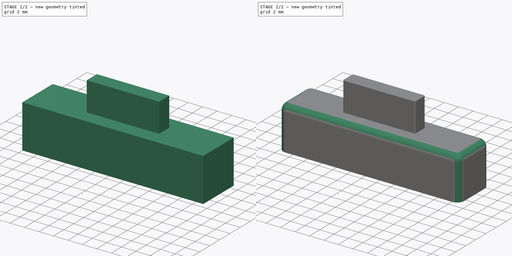
[diagram: build sequence overview — one tinted view per stage of 2, left to right]
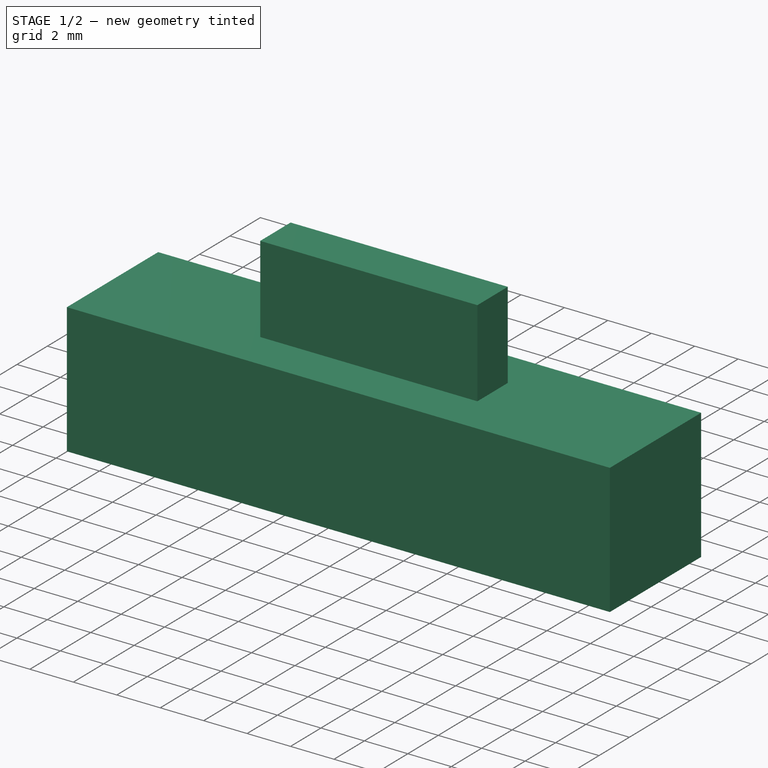
[diagram: stage 1 of 2 — iso view after this stage's code; geometry added in this stage tinted green]
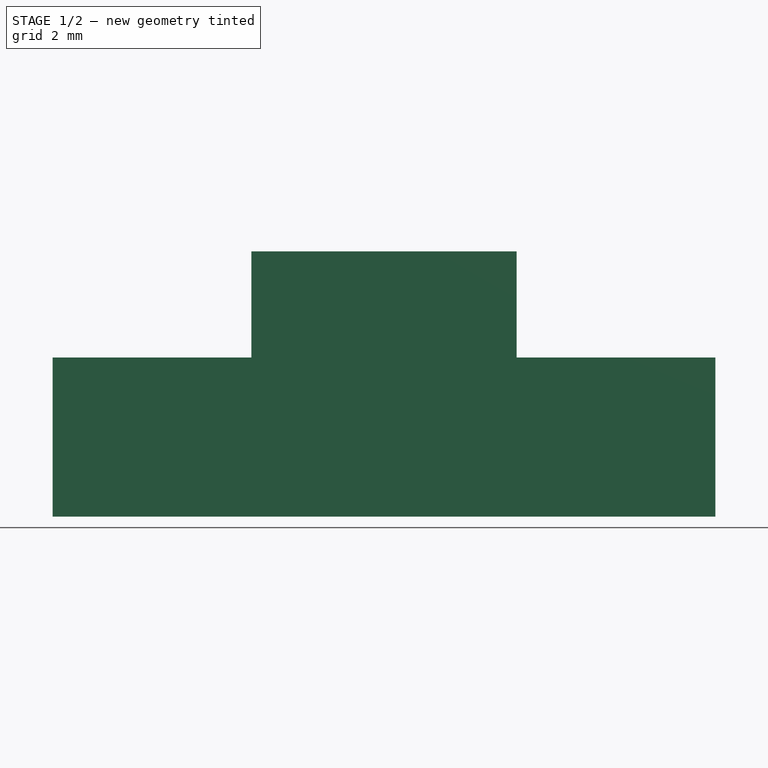
[diagram: stage 1 of 2 — front view after this stage's code; geometry added in this stage tinted green]
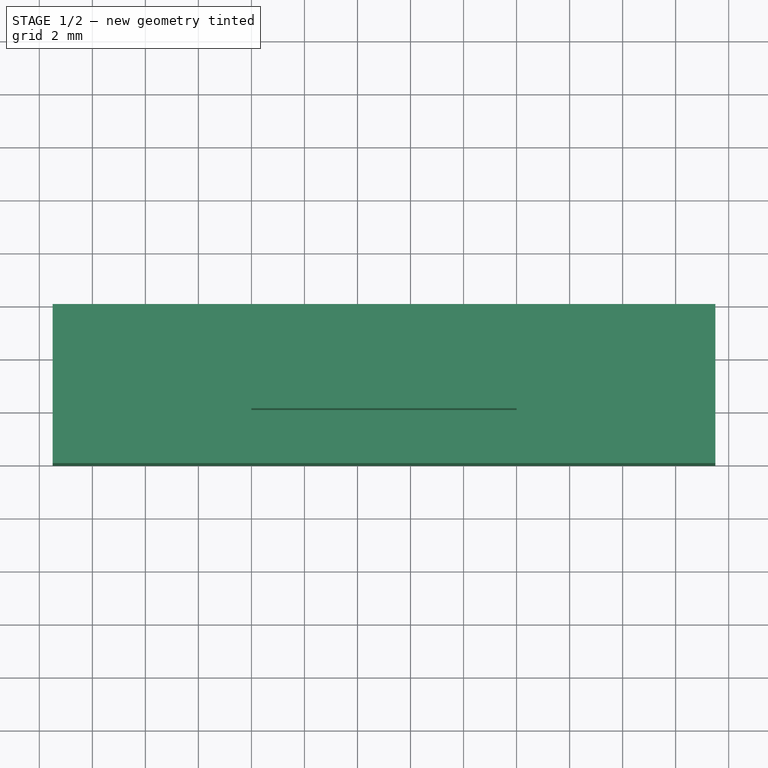
[diagram: stage 1 of 2 — top view after this stage's code; geometry added in this stage tinted green]
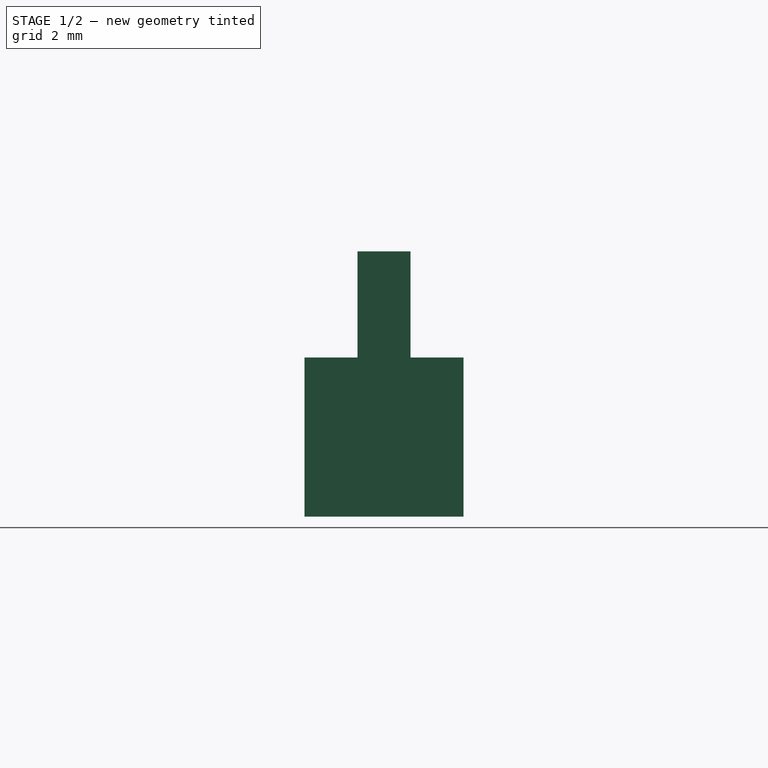
[diagram: stage 1 of 2 — right view after this stage's code; geometry added in this stage tinted green]
FCSTD DOCUMENT  (FreeCAD 0.21R33771 (Git))
Label: surfboardKey
License: All rights reserved
LicenseURL: http://en.wikipedia.org/wiki/All_rights_reserved
objects: Sketcher::SketchObject×2, PartDesign::Pad×2, PartDesign::Fillet×2, Spreadsheet::Sheet×1, PartDesign::Body×1
note: 11 computed .brp shape members not serialized (recipe doc carries the construction recipe); baked Part::Feature solids carry a one-line shape summary decoded from their .brp

FEATURE [Sketcher::SketchObject] Sketch
  FullyConstrained = true
  MapMode = 5
  Support = -> [XY_Plane]
  expr: Constraints[10] = Spreadsheet.keyWidth
  expr: Constraints[9] = Spreadsheet.keyThickness
  sketch-geometry (4):
    g0: LineSegment StartX=0 StartY=0 StartZ=0 EndX=10 EndY=0 EndZ=0
    g1: LineSegment StartX=10 StartY=0 StartZ=0 EndX=10 EndY=2 EndZ=0
    g2: LineSegment StartX=10 StartY=2 StartZ=0 EndX=0 EndY=2 EndZ=0
    g3: LineSegment StartX=0 StartY=2 StartZ=0 EndX=0 EndY=0 EndZ=0
  constraints (11):
    c: Coincident(g0,g1)
    c: Coincident(g1,g2)
    c: Coincident(g2,g3)
    c: Coincident(g3,g0)
    c: Horizontal(g0)
    c: Horizontal(g2)
    c: Vertical(g1)
    c: Vertical(g3)
    c: Coincident(g0,g-1)
    c: DistanceY(g3,g3) = 2
    c: DistanceX(g2,g2) = 10
FEATURE [Spreadsheet::Sheet] Spreadsheet
  cells = A2='baseWidth; B2(baseWidth)=25; A3='baseHeight; B3(baseHeight)=6; A4='baseZ; B4(baseZ)=6; A5='keyZ; B5(keyZ)=4; A6='keyWidth; B6(keyWidth)=10; A7='keyThickness; B7(keyThickness)=2
FEATURE [PartDesign::Pad] Pad
  Direction = (0,0,1)
  Length = 4
  Length2 = 10
  Profile = -> Sketch
  ReferenceAxis = -> Sketch [N_Axis]
  Type = 0
  expr: Length = Spreadsheet.keyZ
FEATURE [Sketcher::SketchObject] Sketch001
  FullyConstrained = true
  MapMode = 5
  Support = -> [XY_Plane]
  expr: Constraints[10] = (Spreadsheet.baseHeight - Spreadsheet.keyThickness) / 2
  expr: Constraints[11] = Spreadsheet.baseHeight
  expr: Constraints[8] = (Spreadsheet.baseWidth - Spreadsheet.keyWidth) / 2
  expr: Constraints[9] = Spreadsheet.baseWidth
  sketch-geometry (4):
    g0: LineSegment StartX=-7.5 StartY=4 StartZ=0 EndX=17.5 EndY=4 EndZ=0
    g1: LineSegment StartX=17.5 StartY=4 StartZ=0 EndX=17.5 EndY=-2 EndZ=0
    g2: LineSegment StartX=17.5 StartY=-2 StartZ=0 EndX=-7.5 EndY=-2 EndZ=0
    g3: LineSegment StartX=-7.5 StartY=-2 StartZ=0 EndX=-7.5 EndY=4 EndZ=0
  constraints (12):
    c: Coincident(g0,g1)
    c: Coincident(g1,g2)
    c: Coincident(g2,g3)
    c: Coincident(g3,g0)
    c: Horizontal(g0)
    c: Horizontal(g2)
    c: Vertical(g1)
    c: Vertical(g3)
    c: DistanceX(g2,g-1) = 7.5
    c: DistanceX(g2,g2) = 25
    c: DistanceY(g2,g-1) = 2
    c: DistanceY(g3,g3) = 6
FEATURE [PartDesign::Pad] Pad001
  BaseFeature = -> Pad
  Direction = (0,0,1)
  Length = 6
  Length2 = 10
  Profile = -> Sketch001
  ReferenceAxis = -> Sketch001 [N_Axis]
  Reversed = true
  Type = 0
  expr: Length = Spreadsheet.baseZ
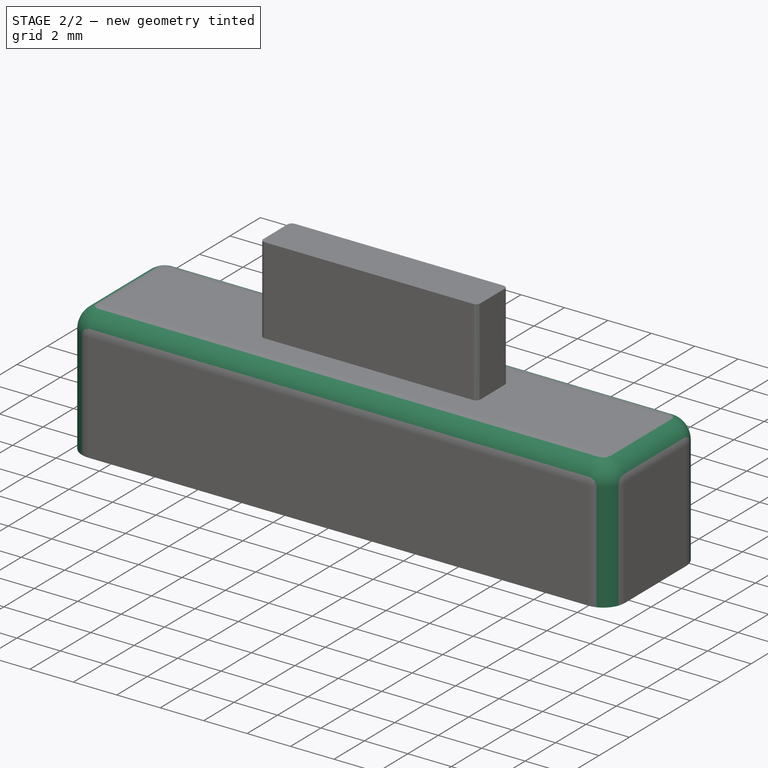
[diagram: stage 2 of 2 — iso view after this stage's code; geometry added in this stage tinted green]
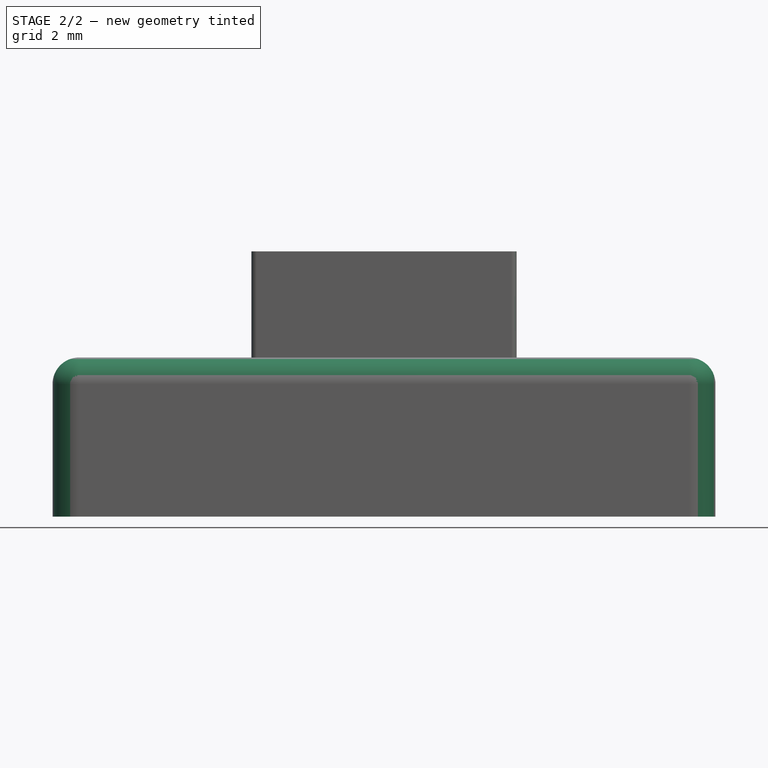
[diagram: stage 2 of 2 — front view after this stage's code; geometry added in this stage tinted green]
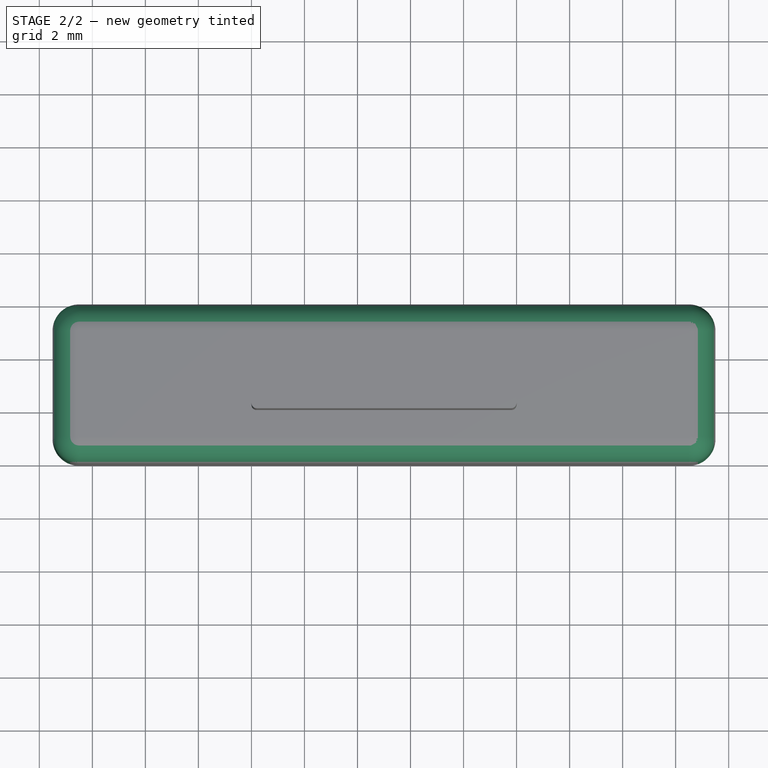
[diagram: stage 2 of 2 — top view after this stage's code; geometry added in this stage tinted green]
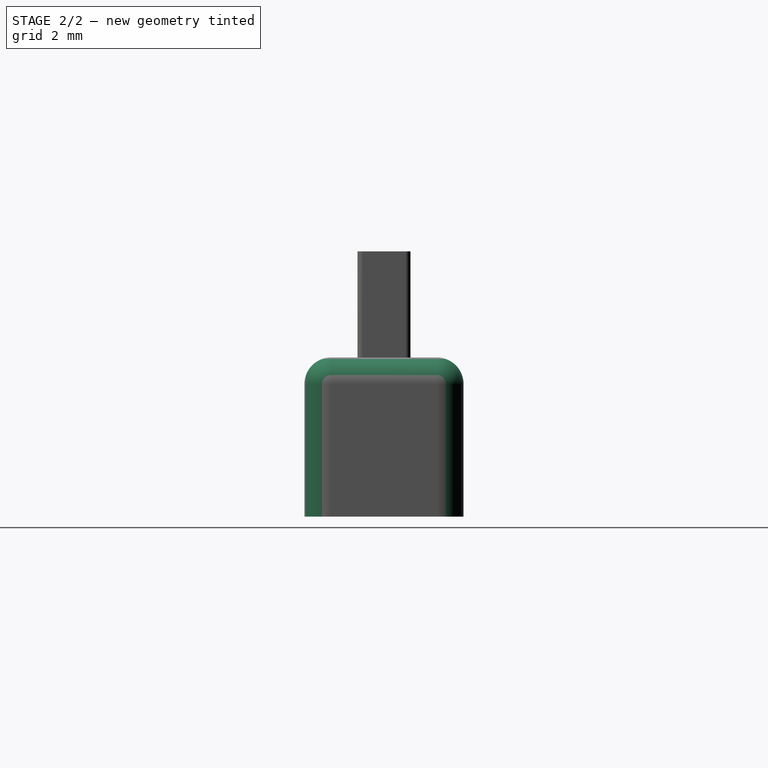
[diagram: stage 2 of 2 — right view after this stage's code; geometry added in this stage tinted green]
FEATURE [PartDesign::Fillet] Fillet
  Base = -> Pad001 [Edge5,Edge1,Edge6,Edge11,Edge8,Edge9,Edge3,Edge2]
  BaseFeature = -> Pad001
  Radius = 1
  SupportTransform = false
  UseAllEdges = false
FEATURE [PartDesign::Fillet] Fillet001
  Base = -> Fillet [Edge46,Edge48,Edge45,Edge50]
  BaseFeature = -> Fillet
  Radius = 0.2
  SupportTransform = false
  UseAllEdges = false
FEATURE [PartDesign::Body] Body
  Group = -> [Sketch,Pad,Sketch001,Pad001,Fillet,Fillet001]
  Origin = -> Origin
  Tip = -> Fillet001
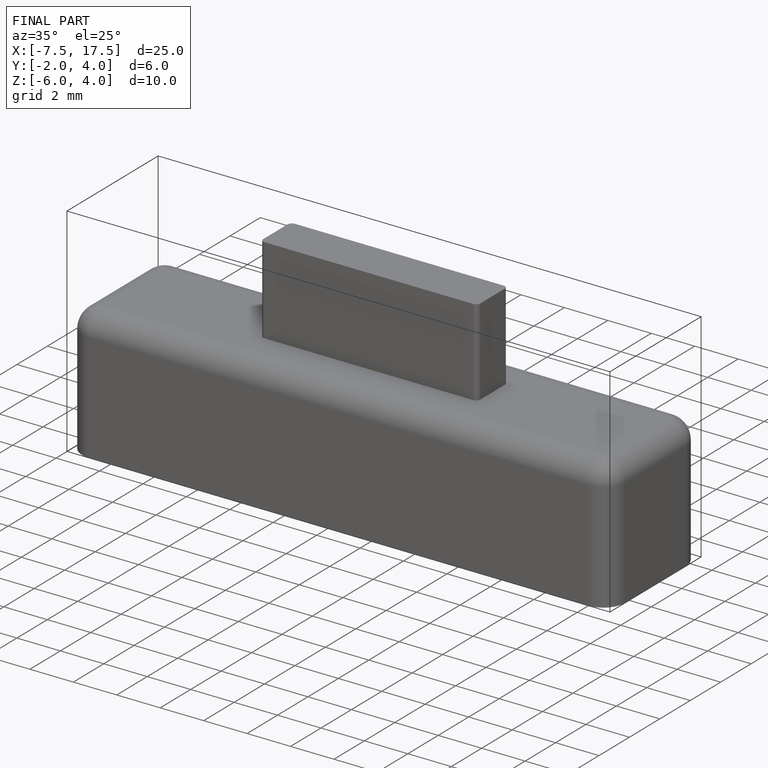
[diagram: finished part — iso view with bounding-box wireframe]
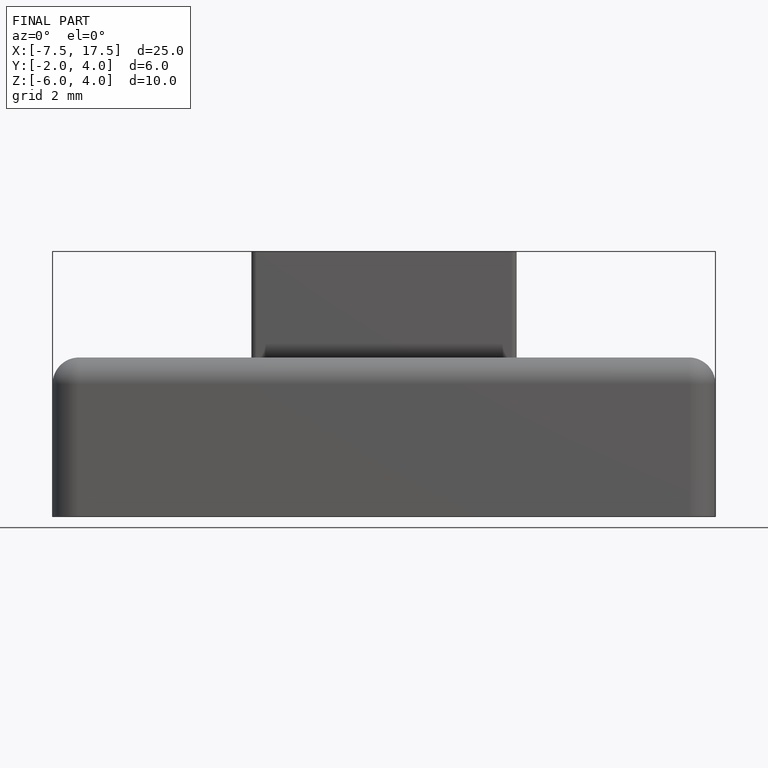
[diagram: finished part — front view with bounding-box wireframe]
